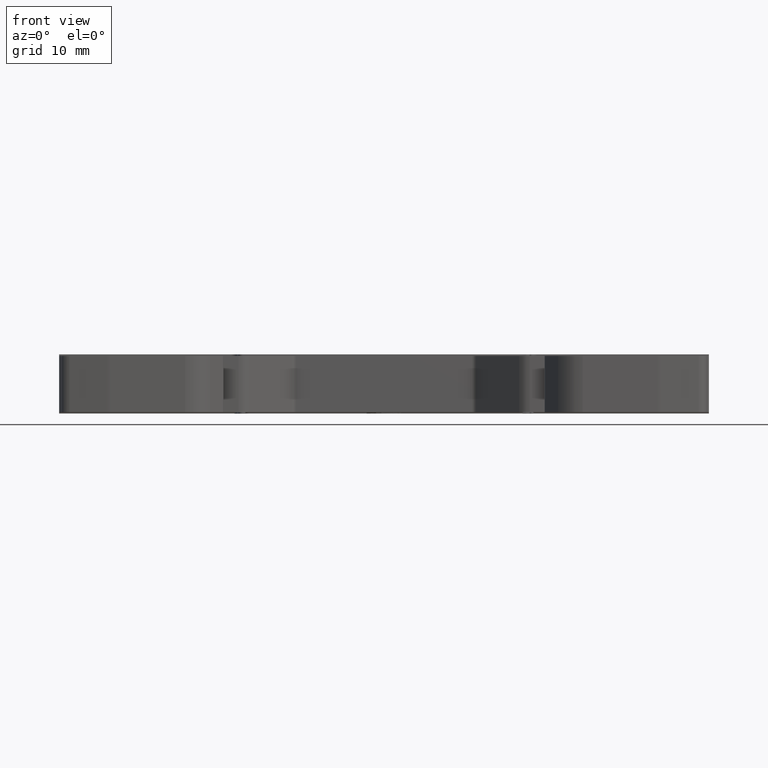
[diagram: clean part render]
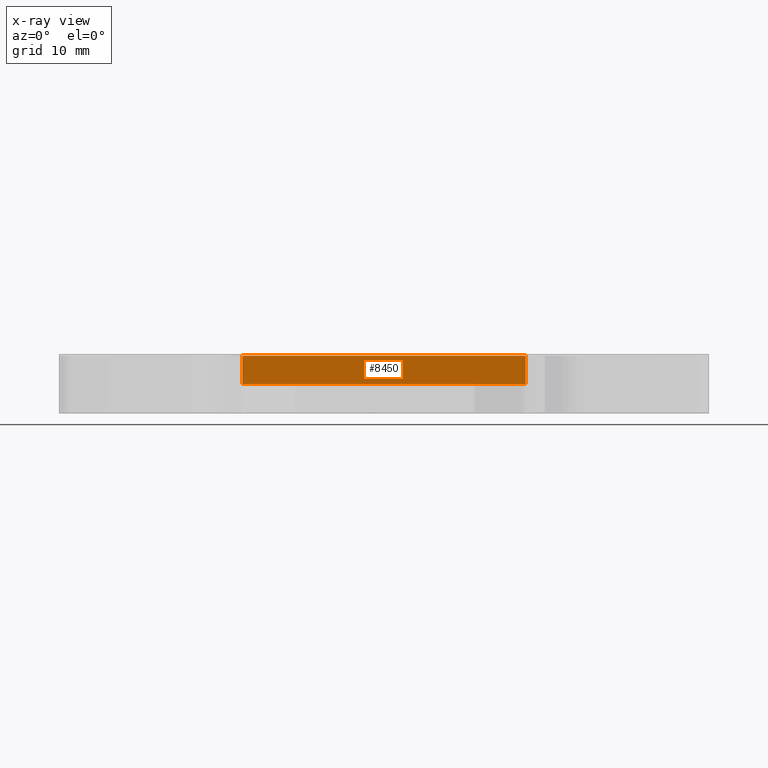
[diagram: x-ray — body ghosted, one internal face saturated and labeled with its STEP entity id]
A machine part, front view, then the same camera in x-ray: the body is ghosted and one INTERNAL B-rep face — a face not visible from any outside direction — is saturated and labeled: STEP entity #8450.
In plain terms, the highlighted planar face has unit normal (0, -1, -0).
Its self-contained STEP definition (entity closure, byte-faithful):
#389 = VECTOR ( 'NONE', #1879, 1000.000000000000000 ) ;
#1031 = VECTOR ( 'NONE', #1398, 1000.000000000000000 ) ;
#1156 = VECTOR ( 'NONE', #1608, 1000.000000000000000 ) ;
#1198 = VECTOR ( 'NONE', #1599, 1000.000000000000000 ) ;
#1245 = LINE ( 'NONE', #1253, #8039 ) ;
#1253 = CARTESIAN_POINT ( 'NONE',  ( -19.35386479478710300, -110.6092615996412400, 2.899999999999999900 ) ) ;
#1268 = DIRECTION ( 'NONE',  ( 1.000000000000000000, -0.0000000000000000000, -0.0000000000000000000 ) ) ;
#1272 = CARTESIAN_POINT ( 'NONE',  ( -16.55261768150108300, -110.6092615996412400, 12.90000000000000000 ) ) ;
#1281 = CARTESIAN_POINT ( 'NONE',  ( -19.35386479478710300, -110.6092615996412400, 2.899999999999999900 ) ) ;
#1295 = DIRECTION ( 'NONE',  ( 1.000000000000000000, -0.0000000000000000000, -0.0000000000000000000 ) ) ;
#1296 = LINE ( 'NONE', #1281, #8027 ) ;
#1302 = LINE ( 'NONE', #1272, #8112 ) ;
#1386 = DIRECTION ( 'NONE',  ( 0.0000000000000000000, 0.0000000000000000000, -1.000000000000000000 ) ) ;
#1397 = CARTESIAN_POINT ( 'NONE',  ( -19.35386479478710300, -110.6092615996412400, 2.899999999999999900 ) ) ;
#1398 = DIRECTION ( 'NONE',  ( 1.000000000000000000, -0.0000000000000000000, -0.0000000000000000000 ) ) ;
#1406 = LINE ( 'NONE', #1397, #1031 ) ;
#1592 = CARTESIAN_POINT ( 'NONE',  ( 11.70106793576041000, -110.6092615996412400, 12.90000000000000000 ) ) ;
#1599 = DIRECTION ( 'NONE',  ( 0.0000000000000000000, 0.0000000000000000000, -1.000000000000000000 ) ) ;
#1608 = DIRECTION ( 'NONE',  ( 1.000000000000000000, -0.0000000000000000000, -0.0000000000000000000 ) ) ;
#1612 = LINE ( 'NONE', #1592, #1198 ) ;
#1626 = CARTESIAN_POINT ( 'NONE',  ( -19.35386479478710300, -110.6092615996412400, 2.899999999999999900 ) ) ;
#1629 = LINE ( 'NONE', #1626, #1156 ) ;
#1846 = CARTESIAN_POINT ( 'NONE',  ( -19.35386479478710300, -110.6092615996412400, 5.700000000000000200 ) ) ;
#1861 = LINE ( 'NONE', #1846, #389 ) ;
#1879 = DIRECTION ( 'NONE',  ( 1.000000000000000000, -0.0000000000000000000, -0.0000000000000000000 ) ) ;
#3029 = AXIS2_PLACEMENT_3D ( 'NONE', #12545, #12562, #12551 ) ;
#3963 = VERTEX_POINT ( 'NONE', #7590 ) ;
#5896 = CARTESIAN_POINT ( 'NONE',  ( -15.75261768150108200, -110.6092615996412400, 2.899999999999999900 ) ) ;
#5923 = CARTESIAN_POINT ( 'NONE',  ( -10.96681481501618500, -110.6092615996412400, 2.899999999999999900 ) ) ;
#5976 = CARTESIAN_POINT ( 'NONE',  ( 6.109199347761412800, -110.6092615996412400, 2.899999999999999900 ) ) ;
#5984 = CARTESIAN_POINT ( 'NONE',  ( -0.5379301906368733100, -110.6092615996412400, 2.899999999999999900 ) ) ;
#5986 = CARTESIAN_POINT ( 'NONE',  ( -9.360702890210292900, -110.6092615996412400, 2.899999999999999900 ) ) ;
#6001 = CARTESIAN_POINT ( 'NONE',  ( -4.314166635936284200, -110.6092615996412400, 2.899999999999999900 ) ) ;
#6043 = CARTESIAN_POINT ( 'NONE',  ( 4.508606063637121700, -110.6092615996412400, 2.899999999999999900 ) ) ;
#6057 = CARTESIAN_POINT ( 'NONE',  ( 10.90106793576041400, -110.6092615996412400, 2.899999999999999900 ) ) ;
#6516 = CARTESIAN_POINT ( 'NONE',  ( 11.70106793576041000, -110.6092615996412400, 2.899999999999999900 ) ) ;
#7071 = VERTEX_POINT ( 'NONE', #12421 ) ;
#7108 = VERTEX_POINT ( 'NONE', #12442 ) ;
#7590 = CARTESIAN_POINT ( 'NONE',  ( -16.55261768150108300, -110.6092615996412400, 2.899999999999999900 ) ) ;
#7932 = VECTOR ( 'NONE', #15077, 1000.000000000000000 ) ;
#7933 = VECTOR ( 'NONE', #15071, 1000.000000000000000 ) ;
#7945 = VECTOR ( 'NONE', #15118, 1000.000000000000000 ) ;
#8008 = VECTOR ( 'NONE', #15178, 1000.000000000000000 ) ;
#8027 = VECTOR ( 'NONE', #1295, 1000.000000000000000 ) ;
#8037 = VECTOR ( 'NONE', #15190, 1000.000000000000000 ) ;
#8039 = VECTOR ( 'NONE', #1268, 1000.000000000000000 ) ;
#8112 = VECTOR ( 'NONE', #1386, 1000.000000000000000 ) ;
#8450 = ADVANCED_FACE ( 'NONE', ( #12558 ), #12528, .F. ) ;
#9171 = EDGE_CURVE ( 'NONE', #14687, #14702, #15074, .T. ) ;
#9179 = EDGE_CURVE ( 'NONE', #14702, #14700, #15081, .T. ) ;
#9181 = EDGE_CURVE ( 'NONE', #14700, #14752, #15091, .T. ) ;
#9220 = EDGE_CURVE ( 'NONE', #14664, #14687, #15188, .T. ) ;
#9223 = EDGE_CURVE ( 'NONE', #3963, #14664, #15199, .T. ) ;
#9236 = EDGE_CURVE ( 'NONE', #14754, #14499, #1245, .T. ) ;
#9244 = EDGE_CURVE ( 'NONE', #14752, #14768, #1296, .T. ) ;
#9256 = EDGE_CURVE ( 'NONE', #7071, #3963, #1302, .T. ) ;
#9276 = EDGE_CURVE ( 'NONE', #14749, #14754, #1406, .T. ) ;
#9309 = EDGE_CURVE ( 'NONE', #7108, #14499, #1612, .T. ) ;
#9319 = EDGE_CURVE ( 'NONE', #14768, #14749, #1629, .T. ) ;
#9879 = EDGE_CURVE ( 'NONE', #7071, #7108, #1861, .T. ) ;
#12421 = CARTESIAN_POINT ( 'NONE',  ( -16.55261768150108300, -110.6092615996412400, 5.700000000000000200 ) ) ;
#12442 = CARTESIAN_POINT ( 'NONE',  ( 11.70106793576041000, -110.6092615996412400, 5.700000000000000200 ) ) ;
#12528 = PLANE ( 'NONE',  #3029 ) ;
#12545 = CARTESIAN_POINT ( 'NONE',  ( -19.35386479478710300, -110.6092615996412400, 5.700000000000000200 ) ) ;
#12551 = DIRECTION ( 'NONE',  ( 0.0000000000000000000, 0.0000000000000000000, -1.000000000000000000 ) ) ;
#12558 = FACE_OUTER_BOUND ( 'NONE', #14340, .T. ) ;
#12562 = DIRECTION ( 'NONE',  ( 0.0000000000000000000, -1.000000000000000000, -0.0000000000000000000 ) ) ;
#13948 = ORIENTED_EDGE ( 'NONE', *, *, #9276, .F. ) ;
#13983 = ORIENTED_EDGE ( 'NONE', *, *, #9236, .F. ) ;
#13984 = ORIENTED_EDGE ( 'NONE', *, *, #9879, .T. ) ;
#13986 = ORIENTED_EDGE ( 'NONE', *, *, #9179, .F. ) ;
#13995 = ORIENTED_EDGE ( 'NONE', *, *, #9256, .F. ) ;
#13996 = ORIENTED_EDGE ( 'NONE', *, *, #9171, .F. ) ;
#14016 = ORIENTED_EDGE ( 'NONE', *, *, #9220, .F. ) ;
#14018 = ORIENTED_EDGE ( 'NONE', *, *, #9244, .F. ) ;
#14019 = ORIENTED_EDGE ( 'NONE', *, *, #9181, .F. ) ;
#14023 = ORIENTED_EDGE ( 'NONE', *, *, #9309, .T. ) ;
#14038 = ORIENTED_EDGE ( 'NONE', *, *, #9223, .F. ) ;
#14042 = ORIENTED_EDGE ( 'NONE', *, *, #9319, .F. ) ;
#14340 = EDGE_LOOP ( 'NONE', ( #13995, #13984, #14023, #13983, #13948, #14042, #14018, #14019, #13986, #13996, #14016, #14038 ) ) ;
#14499 = VERTEX_POINT ( 'NONE', #6516 ) ;
#14664 = VERTEX_POINT ( 'NONE', #5896 ) ;
#14687 = VERTEX_POINT ( 'NONE', #5923 ) ;
#14700 = VERTEX_POINT ( 'NONE', #6001 ) ;
#14702 = VERTEX_POINT ( 'NONE', #5986 ) ;
#14749 = VERTEX_POINT ( 'NONE', #5976 ) ;
#14752 = VERTEX_POINT ( 'NONE', #5984 ) ;
#14754 = VERTEX_POINT ( 'NONE', #6057 ) ;
#14768 = VERTEX_POINT ( 'NONE', #6043 ) ;
#15068 = CARTESIAN_POINT ( 'NONE',  ( -19.35386479478710300, -110.6092615996412400, 2.899999999999999900 ) ) ;
#15070 = CARTESIAN_POINT ( 'NONE',  ( -19.35386479478710300, -110.6092615996412400, 2.899999999999999900 ) ) ;
#15071 = DIRECTION ( 'NONE',  ( 1.000000000000000000, -0.0000000000000000000, -0.0000000000000000000 ) ) ;
#15074 = LINE ( 'NONE', #15068, #7932 ) ;
#15077 = DIRECTION ( 'NONE',  ( 1.000000000000000000, -0.0000000000000000000, -0.0000000000000000000 ) ) ;
#15081 = LINE ( 'NONE', #15070, #7933 ) ;
#15091 = LINE ( 'NONE', #15115, #7945 ) ;
#15115 = CARTESIAN_POINT ( 'NONE',  ( -19.35386479478710300, -110.6092615996412400, 2.899999999999999900 ) ) ;
#15118 = DIRECTION ( 'NONE',  ( 1.000000000000000000, -0.0000000000000000000, -0.0000000000000000000 ) ) ;
#15178 = DIRECTION ( 'NONE',  ( 1.000000000000000000, -0.0000000000000000000, -0.0000000000000000000 ) ) ;
#15188 = LINE ( 'NONE', #15189, #8037 ) ;
#15189 = CARTESIAN_POINT ( 'NONE',  ( -19.35386479478710300, -110.6092615996412400, 2.899999999999999900 ) ) ;
#15190 = DIRECTION ( 'NONE',  ( 1.000000000000000000, -0.0000000000000000000, -0.0000000000000000000 ) ) ;
#15199 = LINE ( 'NONE', #15220, #8008 ) ;
#15220 = CARTESIAN_POINT ( 'NONE',  ( -19.35386479478710300, -110.6092615996412400, 2.899999999999999900 ) ) ;